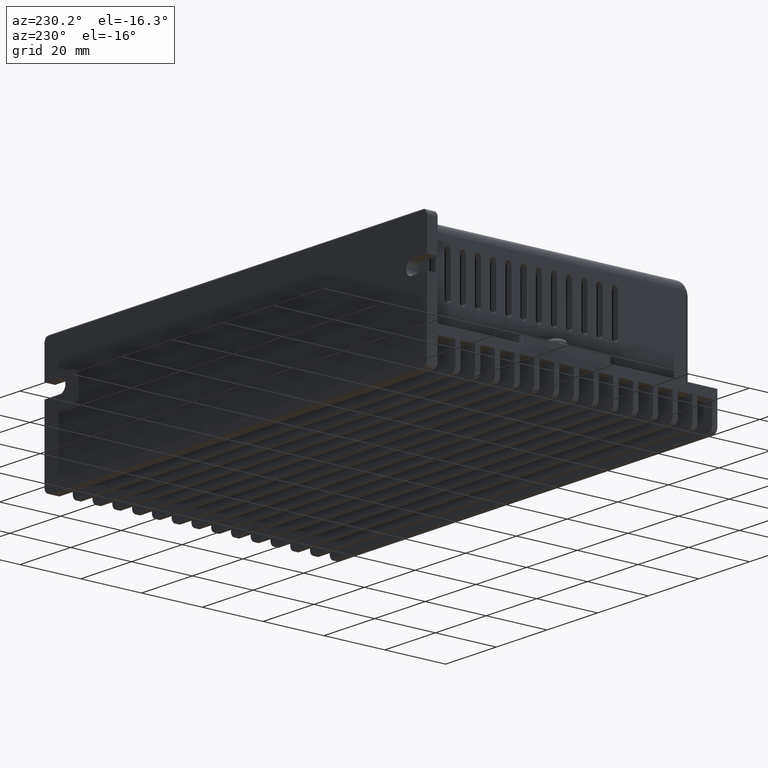
[diagram: clean part render]
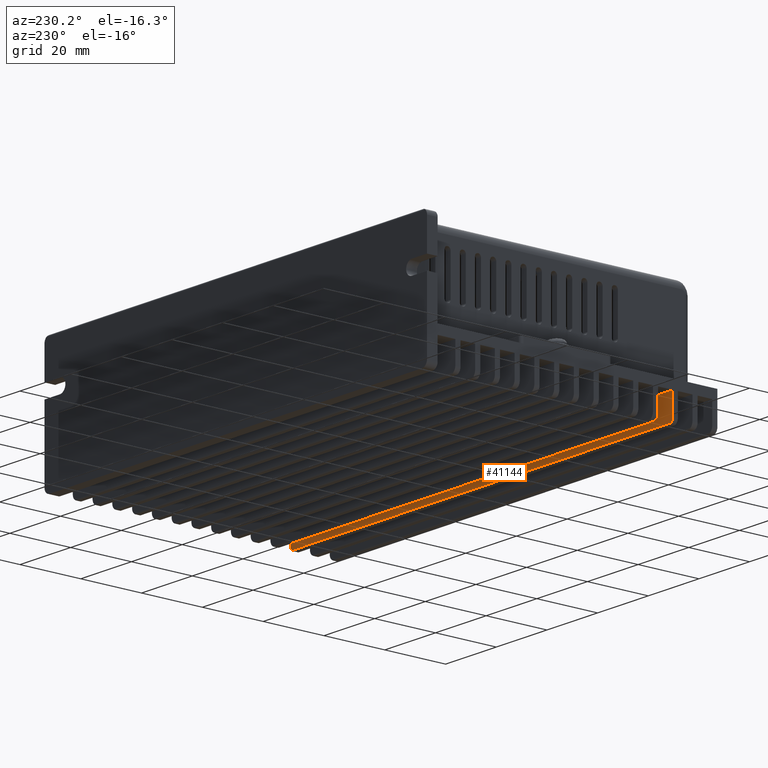
[diagram: same view with one face highlighted and labeled with its STEP entity id]
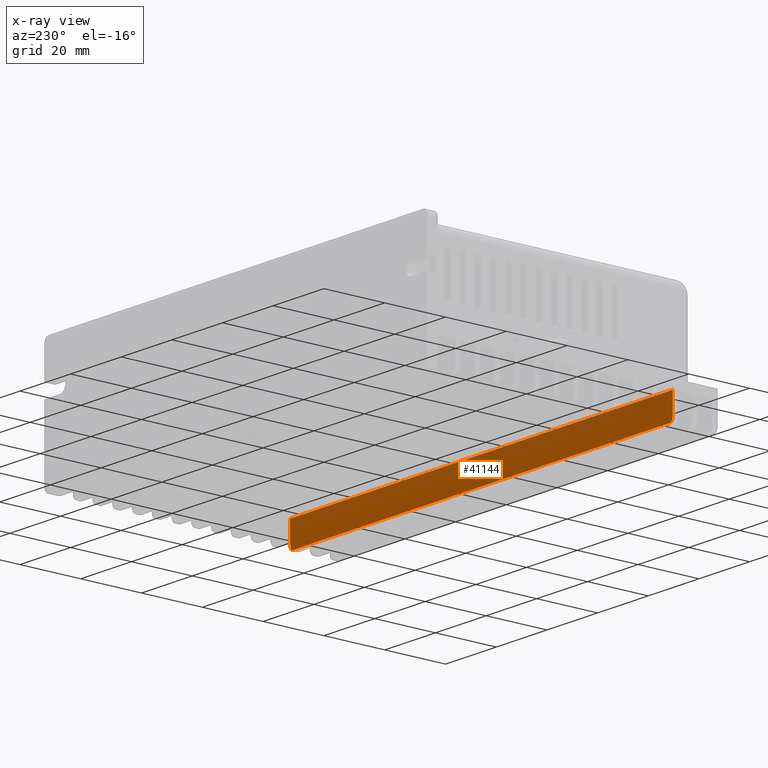
[diagram: x-ray of the same camera — body ghosted, the highlighted face saturated]
A machine part, auxiliary view. The second image highlights one B-rep face of the part: STEP entity #41144.
The next image is the same camera in x-ray: the body ghosted, the highlighted face saturated — about 37% of this face is hidden behind the body in this view.
In plain terms, the highlighted planar face has unit normal (-0, 1, 0).
Its self-contained STEP definition (entity closure, byte-faithful):
#1128 = CIRCLE ( 'NONE', #44164, 0.07874015748031476500 ) ;
#3142 = CARTESIAN_POINT ( 'NONE',  ( -2.893700787401573200, -1.251968503937076900, -1.614173228346456700 ) ) ;
#3241 = ORIENTED_EDGE ( 'NONE', *, *, #36360, .T. ) ;
#3469 = DIRECTION ( 'NONE',  ( 0.0000000000000000000, -0.0000000000000000000, 1.000000000000000000 ) ) ;
#4134 = ORIENTED_EDGE ( 'NONE', *, *, #46080, .F. ) ;
#10006 = DIRECTION ( 'NONE',  ( 0.0000000000000000000, -1.000000000000000000, 1.734723475976805700E-015 ) ) ;
#10451 = VECTOR ( 'NONE', #54351, 39.37007874015748100 ) ;
#10712 = CARTESIAN_POINT ( 'NONE',  ( -3.091338582677163300, -1.251968503937063200, -1.338582677165354400 ) ) ;
#11814 = FACE_OUTER_BOUND ( 'NONE', #49284, .T. ) ;
#13935 = EDGE_CURVE ( 'NONE', #16750, #15980, #21581, .T. ) ;
#14290 = DIRECTION ( 'NONE',  ( 0.0000000000000000000, 0.0000000000000000000, -1.000000000000000000 ) ) ;
#15714 = CARTESIAN_POINT ( 'NONE',  ( 3.091338582677166900, -1.251968503937037000, -1.673228346456915100 ) ) ;
#15980 = VERTEX_POINT ( 'NONE', #19702 ) ;
#16750 = VERTEX_POINT ( 'NONE', #18757 ) ;
#16861 = DIRECTION ( 'NONE',  ( 0.0000000000000000000, -3.469446951953635100E-015, -1.000000000000000000 ) ) ;
#18132 = CIRCLE ( 'NONE', #21816, 0.07874015748031448800 ) ;
#18757 = CARTESIAN_POINT ( 'NONE',  ( 2.972440944881891600, -1.251968503937035000, -1.338582677165355300 ) ) ;
#19155 = LINE ( 'NONE', #15714, #10451 ) ;
#19156 = CARTESIAN_POINT ( 'NONE',  ( 2.893700787401576300, -1.251968503937001400, -1.614173228346456700 ) ) ;
#19508 = DIRECTION ( 'NONE',  ( -1.000000000000000000, 0.0000000000000000000, -0.0000000000000000000 ) ) ;
#19702 = CARTESIAN_POINT ( 'NONE',  ( -2.972440944881888000, -1.251968503937072300, -1.338582677165354400 ) ) ;
#19738 = VECTOR ( 'NONE', #21811, 39.37007874015748100 ) ;
#20542 = PLANE ( 'NONE',  #43905 ) ;
#21581 = LINE ( 'NONE', #10712, #33002 ) ;
#21811 = DIRECTION ( 'NONE',  ( -0.0000000000000000000, -0.0000000000000000000, 1.000000000000000000 ) ) ;
#21816 = AXIS2_PLACEMENT_3D ( 'NONE', #3142, #25085, #16861 ) ;
#23583 = ORIENTED_EDGE ( 'NONE', *, *, #13935, .F. ) ;
#24060 = VERTEX_POINT ( 'NONE', #39765 ) ;
#25085 = DIRECTION ( 'NONE',  ( 0.0000000000000000000, -1.000000000000000000, 1.734723475976817500E-015 ) ) ;
#26309 = CARTESIAN_POINT ( 'NONE',  ( -2.972440944881888000, -1.251968503937076500, -0.08818897637795271300 ) ) ;
#26479 = LINE ( 'NONE', #26309, #19738 ) ;
#27330 = LINE ( 'NONE', #28870, #41368 ) ;
#28870 = CARTESIAN_POINT ( 'NONE',  ( 2.972440944881891600, -1.251968503937020700, -0.08818897637795271300 ) ) ;
#29154 = DIRECTION ( 'NONE',  ( -0.0000000000000000000, 1.000000000000000000, 0.0000000000000000000 ) ) ;
#30906 = VERTEX_POINT ( 'NONE', #38944 ) ;
#33002 = VECTOR ( 'NONE', #19508, 39.37007874015748100 ) ;
#33049 = ORIENTED_EDGE ( 'NONE', *, *, #37182, .T. ) ;
#33716 = CARTESIAN_POINT ( 'NONE',  ( -2.945782506123155300, -1.251968503936945900, -1.673228346456921100 ) ) ;
#36360 = EDGE_CURVE ( 'NONE', #30906, #46106, #19155, .T. ) ;
#37182 = EDGE_CURVE ( 'NONE', #24060, #15980, #26479, .T. ) ;
#38348 = CARTESIAN_POINT ( 'NONE',  ( 2.972440944881891600, -1.251968503937011000, -1.614173228346456500 ) ) ;
#38944 = CARTESIAN_POINT ( 'NONE',  ( 2.945782506123067800, -1.251968503937019200, -1.673228346456915100 ) ) ;
#39765 = CARTESIAN_POINT ( 'NONE',  ( -2.972440944881888000, -1.251968503937076900, -1.614173228346456500 ) ) ;
#41144 = ADVANCED_FACE ( 'NONE', ( #11814 ), #20542, .T. ) ;
#41368 = VECTOR ( 'NONE', #46704, 39.37007874015748100 ) ;
#41498 = ORIENTED_EDGE ( 'NONE', *, *, #48225, .F. ) ;
#42399 = VERTEX_POINT ( 'NONE', #38348 ) ;
#42447 = ORIENTED_EDGE ( 'NONE', *, *, #48553, .F. ) ;
#43905 = AXIS2_PLACEMENT_3D ( 'NONE', #54874, #29154, #3469 ) ;
#44164 = AXIS2_PLACEMENT_3D ( 'NONE', #19156, #10006, #14290 ) ;
#46080 = EDGE_CURVE ( 'NONE', #24060, #46106, #18132, .T. ) ;
#46106 = VERTEX_POINT ( 'NONE', #33716 ) ;
#46704 = DIRECTION ( 'NONE',  ( -0.0000000000000000000, -0.0000000000000000000, 1.000000000000000000 ) ) ;
#48225 = EDGE_CURVE ( 'NONE', #30906, #42399, #1128, .T. ) ;
#48553 = EDGE_CURVE ( 'NONE', #42399, #16750, #27330, .T. ) ;
#49284 = EDGE_LOOP ( 'NONE', ( #41498, #3241, #4134, #33049, #23583, #42447 ) ) ;
#54351 = DIRECTION ( 'NONE',  ( -1.000000000000000000, -0.0000000000000000000, -0.0000000000000000000 ) ) ;
#54874 = CARTESIAN_POINT ( 'NONE',  ( 3.091338582677166900, -1.251968503937037000, -1.329911712491732300 ) ) ;